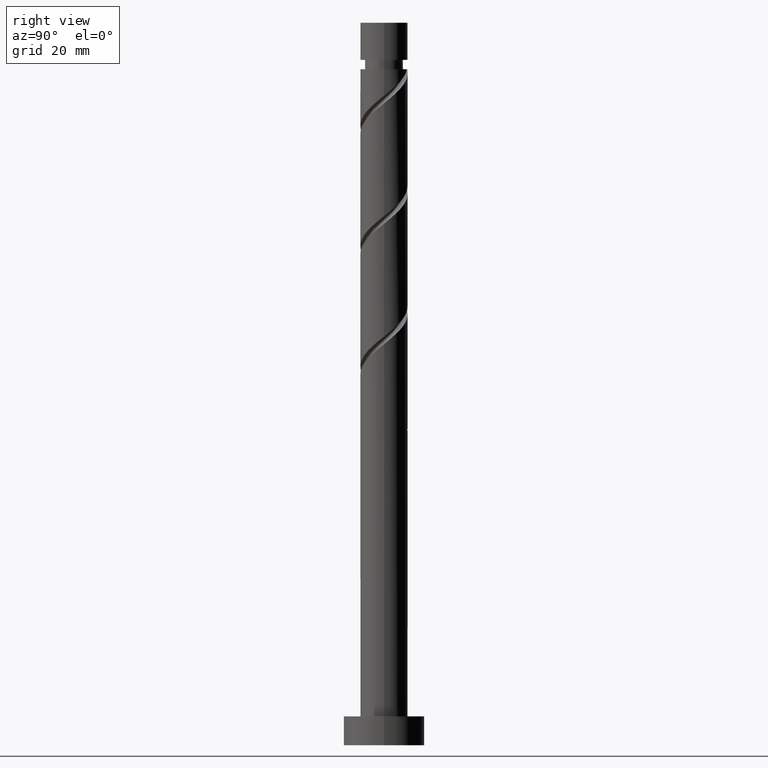
[diagram: clean part render]
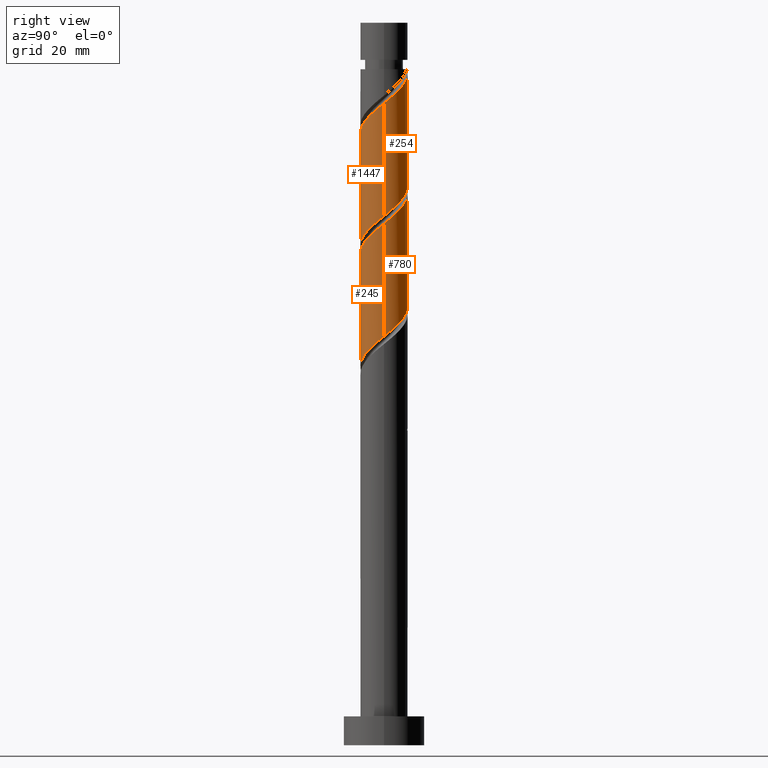
[diagram: same view with one multi-face feature highlighted, each face labeled with its STEP entity id]
A machine part, right view. The highlighted faces form ONE feature: a constant-radius fillet chain: 4 tangent blend faces with common blend radius 4.1 mm. The faces share edges in the B-rep.
Their STEP definitions:
[1] entity #245 (Cylinder):
#9 = CARTESIAN_POINT ( 'NONE',  ( -4.100000000000005862, -0.4120655042562786918, 80.15716561355226588 ) ) ;
#17 = CARTESIAN_POINT ( 'NONE',  ( 0.8158896984274279784, -4.018000000000006011, 85.69599681294801030 ) ) ;
#93 = CARTESIAN_POINT ( 'NONE',  ( -1.452278379651415374, -3.888775766748016061, 64.34183014628135311 ) ) ;
#100 = CARTESIAN_POINT ( 'NONE',  ( -3.730198215631533643, -1.701652512147916019, 61.73766347961468171 ) ) ;
#115 = CARTESIAN_POINT ( 'NONE',  ( -3.021789775274397183, -2.771062351165541671, 62.77933014628134600 ) ) ;
#125 = CYLINDRICAL_SURFACE ( 'NONE', #726, 4.099999999999999645 ) ;
#146 = CARTESIAN_POINT ( 'NONE',  ( 4.073468864823458269, -0.4656730691310472792, 89.86266347961468171 ) ) ;
#189 = EDGE_CURVE ( 'NONE', #708, #323, #1444, .T. ) ;
#238 = CARTESIAN_POINT ( 'NONE',  ( -4.100000000000000533, 4.587889451660987449E-15, 60.31913258775163200 ) ) ;
#245 = ADVANCED_FACE ( 'NONE', ( #1335 ), #125, .T. ) ;
#249 = CARTESIAN_POINT ( 'NONE',  ( 2.582896615680651209, -3.249666833500790109, 87.25849681294805293 ) ) ;
#260 = CARTESIAN_POINT ( 'NONE',  ( 4.100000000000005862, -0.2335923235303744017, 90.05001661560379489 ) ) ;
#284 = VECTOR ( 'NONE', #1106, 1000.000000000000000 ) ;
#286 = CARTESIAN_POINT ( 'NONE',  ( -4.099999999999999645, 0.000000000000000000, 125.0000000000000000 ) ) ;
#323 = VERTEX_POINT ( 'NONE', #1489 ) ;
#328 = CARTESIAN_POINT ( 'NONE',  ( 3.569221300124400198, -2.017587497666032181, 69.02933014628136732 ) ) ;
#341 = CARTESIAN_POINT ( 'NONE',  ( 1.110847155465531255, -3.999713496394922796, 66.42516347961469592 ) ) ;
#364 = CARTESIAN_POINT ( 'NONE',  ( -3.569221300124406859, -2.017587497666033958, 81.52933014628135311 ) ) ;
#371 = CARTESIAN_POINT ( 'NONE',  ( 3.460682934868149818, -2.292457868830305223, 88.30016347961469592 ) ) ;
#434 = EDGE_LOOP ( 'NONE', ( #897, #1042, #1441, #684 ) ) ;
#464 = CARTESIAN_POINT ( 'NONE',  ( -2.292457868830304335, -3.460682934868149818, 83.09183014628136732 ) ) ;
#475 = CARTESIAN_POINT ( 'NONE',  ( -2.017587497666032181, -3.569221300124400198, 63.82099681294801741 ) ) ;
#476 = DIRECTION ( 'NONE',  ( -0.000000000000000000, -0.000000000000000000, -1.000000000000000000 ) ) ;
#487 = CARTESIAN_POINT ( 'NONE',  ( 0.000000000000000000, 0.000000000000000000, 125.0000000000000000 ) ) ;
#495 = CARTESIAN_POINT ( 'NONE',  ( -4.100000000000005862, -3.448413640137319873E-15, 79.82286103814443834 ) ) ;
#517 =( BOUNDED_CURVE ( )  B_SPLINE_CURVE ( 2, ( #1544, #1072, #953, #803, #328, #1561, #589, #1304, #1296, #341, #705, #933, #1439, #93, #475, #1433, #115, #833, #100, #595, #811, #576, #828 ),
 .UNSPECIFIED., .F., .T. ) 
 B_SPLINE_CURVE_WITH_KNOTS ( ( 3, 2, 2, 2, 2, 2, 2, 2, 2, 2, 2, 3 ),
 ( 0.8045322023138552492, 0.8125000000000000000, 0.8249999999999999556, 0.8375000000000000222, 0.8499999999999999778, 0.8625000000000000444, 0.8750000000000000000, 0.8874999999999999556, 0.9000000000000000222, 0.9124999999999999778, 0.9250000000000000444, 0.9295322023138552492 ),
 .UNSPECIFIED. ) 
 CURVE ( )  GEOMETRIC_REPRESENTATION_ITEM ( )  RATIONAL_B_SPLINE_CURVE ( ( 0.9039174447099327381, 0.9019565955404622581, 0.9090909090909106149, 0.8978984914501266790, 0.9090909090909106149, 0.8978984914501266790, 0.9090909090909106149, 0.8978984914501266790, 0.9090909090909106149, 0.8978984914501266790, 0.9090909090909106149, 0.8978984914501266790, 0.9090909090909106149, 0.8978984914501266790, 0.9090909090909106149, 0.8978984914501266790, 0.9090909090909106149, 0.8978984914501266790, 0.9090909090909106149, 0.8978984914501266790, 0.9090909090909106149, 0.9050328050005749247, 0.9039174447099327381 ) ) 
 REPRESENTATION_ITEM ( '' )  );
#532 = VECTOR ( 'NONE', #645, 1000.000000000000000 ) ;
#576 = CARTESIAN_POINT ( 'NONE',  ( -4.100000000000000533, -0.2335923235303724033, 60.50864367695891133 ) ) ;
#589 = CARTESIAN_POINT ( 'NONE',  ( 2.771062351165541671, -3.021789775274397183, 67.98766347961468171 ) ) ;
#592 = EDGE_CURVE ( 'NONE', #806, #1338, #517, .T. ) ;
#595 = CARTESIAN_POINT ( 'NONE',  ( -3.999713496394922796, -1.110847155465531921, 61.21683014628136021 ) ) ;
#620 = CARTESIAN_POINT ( 'NONE',  ( 4.099999999999999645, 5.021051876504147385E-16, 125.0000000000000000 ) ) ;
#645 = DIRECTION ( 'NONE',  ( -0.000000000000000000, -0.000000000000000000, -1.000000000000000000 ) ) ;
#684 = ORIENTED_EDGE ( 'NONE', *, *, #592, .F. ) ;
#705 = CARTESIAN_POINT ( 'NONE',  ( 0.4656730691310446701, -4.073468864823452940, 65.90433014628135311 ) ) ;
#708 = VERTEX_POINT ( 'NONE', #1567 ) ;
#726 = AXIS2_PLACEMENT_3D ( 'NONE', #487, #476, #1460 ) ;
#803 = CARTESIAN_POINT ( 'NONE',  ( 3.888775766748016061, -1.452278379651415374, 69.55016347961469592 ) ) ;
#806 = VERTEX_POINT ( 'NONE', #1423 ) ;
#811 = CARTESIAN_POINT ( 'NONE',  ( -4.073468864823452940, -0.4656730691310448367, 60.69599681294801741 ) ) ;
#828 = CARTESIAN_POINT ( 'NONE',  ( -4.100000000000000533, 4.587889451660987449E-15, 60.31913258775163200 ) ) ;
#833 = CARTESIAN_POINT ( 'NONE',  ( -3.460682934868145377, -2.292457868830300338, 62.25849681294803162 ) ) ;
#845 = CARTESIAN_POINT ( 'NONE',  ( -2.771062351165547444, -3.021789775274400291, 82.57099681294801030 ) ) ;
#852 = CARTESIAN_POINT ( 'NONE',  ( 1.452278379651416262, -3.888775766748022278, 86.21683014628138153 ) ) ;
#897 = ORIENTED_EDGE ( 'NONE', *, *, #963, .F. ) ;
#933 = CARTESIAN_POINT ( 'NONE',  ( -0.1795010172034419704, -4.147224233251982639, 65.38349681294802451 ) ) ;
#940 = CARTESIAN_POINT ( 'NONE',  ( -3.249666833500790109, -2.582896615680651653, 82.05016347961469592 ) ) ;
#953 = CARTESIAN_POINT ( 'NONE',  ( 4.017999999999999794, -0.8158896984274288666, 70.07099681294802451 ) ) ;
#963 = EDGE_CURVE ( 'NONE', #323, #806, #1232, .T. ) ;
#972 = CARTESIAN_POINT ( 'NONE',  ( -3.888775766748022278, -1.452278379651416484, 81.00849681294803872 ) ) ;
#986 = CARTESIAN_POINT ( 'NONE',  ( 4.100000000000005862, 2.908661939941913273E-15, 90.23952770481109553 ) ) ;
#1042 = ORIENTED_EDGE ( 'NONE', *, *, #189, .F. ) ;
#1046 = EDGE_CURVE ( 'NONE', #708, #1338, #1385, .T. ) ;
#1072 = CARTESIAN_POINT ( 'NONE',  ( 4.099999999999998757, -0.4120655042562798021, 70.40149467901045455 ) ) ;
#1073 = CARTESIAN_POINT ( 'NONE',  ( -1.110847155465534586, -3.999713496394928569, 84.13349681294803872 ) ) ;
#1106 = DIRECTION ( 'NONE',  ( -0.000000000000000000, -0.000000000000000000, -1.000000000000000000 ) ) ;
#1110 = CARTESIAN_POINT ( 'NONE',  ( 3.730198215631538972, -1.701652512147919794, 88.82099681294801030 ) ) ;
#1204 = CARTESIAN_POINT ( 'NONE',  ( -0.4656730691310471126, -4.073468864823458269, 84.65433014628138153 ) ) ;
#1232 = LINE ( 'NONE', #620, #284 ) ;
#1296 = CARTESIAN_POINT ( 'NONE',  ( 1.701652512147916019, -3.730198215631533643, 66.94599681294803872 ) ) ;
#1304 = CARTESIAN_POINT ( 'NONE',  ( 2.292457868830300338, -3.460682934868145377, 67.46683014628136732 ) ) ;
#1317 = CARTESIAN_POINT ( 'NONE',  ( 0.1795010172034404439, -4.147224233251988856, 85.17516347961471013 ) ) ;
#1333 = CARTESIAN_POINT ( 'NONE',  ( -1.701652512147919794, -3.730198215631538972, 83.61266347961468171 ) ) ;
#1335 = FACE_OUTER_BOUND ( 'NONE', #434, .T. ) ;
#1338 = VERTEX_POINT ( 'NONE', #238 ) ;
#1345 = CARTESIAN_POINT ( 'NONE',  ( 2.017587497666033958, -3.569221300124406859, 86.73766347961466749 ) ) ;
#1385 = LINE ( 'NONE', #286, #532 ) ;
#1423 = CARTESIAN_POINT ( 'NONE',  ( 4.099999999999999645, -5.097654946289985791E-15, 70.73579925441829630 ) ) ;
#1433 = CARTESIAN_POINT ( 'NONE',  ( -2.582896615680648544, -3.249666833500782559, 63.30016347961469592 ) ) ;
#1439 = CARTESIAN_POINT ( 'NONE',  ( -0.8158896984274286446, -4.017999999999999794, 64.86266347961469592 ) ) ;
#1441 = ORIENTED_EDGE ( 'NONE', *, *, #1046, .T. ) ;
#1444 =( BOUNDED_CURVE ( )  B_SPLINE_CURVE ( 2, ( #495, #9, #1457, #972, #364, #940, #845, #464, #1333, #1073, #1204, #1317, #17, #852, #1345, #249, #1456, #371, #1110, #1568, #146, #260, #986 ),
 .UNSPECIFIED., .F., .T. ) 
 B_SPLINE_CURVE_WITH_KNOTS ( ( 3, 2, 2, 2, 2, 2, 2, 2, 2, 2, 2, 3 ),
 ( 0.3045322023138552492, 0.3125000000000000000, 0.3249999999999999556, 0.3375000000000000222, 0.3499999999999999778, 0.3625000000000000444, 0.3750000000000000000, 0.3874999999999999556, 0.4000000000000000222, 0.4124999999999999778, 0.4250000000000000444, 0.4295322023138552492 ),
 .UNSPECIFIED. ) 
 CURVE ( )  GEOMETRIC_REPRESENTATION_ITEM ( )  RATIONAL_B_SPLINE_CURVE ( ( 0.9039174447099389553, 0.9019565955404684754, 0.9090909090909168322, 0.8978984914501328962, 0.9090909090909168322, 0.8978984914501328962, 0.9090909090909168322, 0.8978984914501328962, 0.9090909090909168322, 0.8978984914501328962, 0.9090909090909168322, 0.8978984914501328962, 0.9090909090909168322, 0.8978984914501328962, 0.9090909090909168322, 0.8978984914501328962, 0.9090909090909168322, 0.8978984914501328962, 0.9090909090909168322, 0.8978984914501328962, 0.9090909090909168322, 0.9050328050005811420, 0.9039174447099389553 ) ) 
 REPRESENTATION_ITEM ( '' )  );
#1456 = CARTESIAN_POINT ( 'NONE',  ( 3.021789775274400291, -2.771062351165547444, 87.77933014628138153 ) ) ;
#1457 = CARTESIAN_POINT ( 'NONE',  ( -4.018000000000006011, -0.8158896984274283115, 80.48766347961469592 ) ) ;
#1460 = DIRECTION ( 'NONE',  ( -1.000000000000000000, 0.000000000000000000, 0.000000000000000000 ) ) ;
#1489 = CARTESIAN_POINT ( 'NONE',  ( 4.100000000000005862, 2.908661939941913273E-15, 90.23952770481109553 ) ) ;
#1544 = CARTESIAN_POINT ( 'NONE',  ( 4.099999999999999645, -5.097654946289985791E-15, 70.73579925441829630 ) ) ;
#1561 = CARTESIAN_POINT ( 'NONE',  ( 3.249666833500782559, -2.582896615680648988, 68.50849681294801030 ) ) ;
#1567 = CARTESIAN_POINT ( 'NONE',  ( -4.100000000000005862, -3.448413640137319873E-15, 79.82286103814443834 ) ) ;
#1568 = CARTESIAN_POINT ( 'NONE',  ( 3.999713496394928569, -1.110847155465534586, 89.34183014628133890 ) ) ;
[2] entity #780 (Cylinder):
#11 = CARTESIAN_POINT ( 'NONE',  ( -2.771062351165542115, 3.021789775274397183, 78.40433014628133890 ) ) ;
#26 = CARTESIAN_POINT ( 'NONE',  ( -3.249666833500782559, 2.582896615680648544, 78.92516347961466749 ) ) ;
#27 = AXIS2_PLACEMENT_3D ( 'NONE', #348, #1446, #1063 ) ;
#31 = CARTESIAN_POINT ( 'NONE',  ( -3.999713496394928125, 1.110847155465534142, 99.75849681294802451 ) ) ;
#140 = CARTESIAN_POINT ( 'NONE',  ( -4.099999999999999645, 0.4120655042562792469, 80.81816134567712595 ) ) ;
#145 = CARTESIAN_POINT ( 'NONE',  ( -3.460682934868150262, 2.292457868830304335, 98.71683014628133890 ) ) ;
#148 =( BOUNDED_CURVE ( )  B_SPLINE_CURVE ( 2, ( #825, #574, #553, #433, #1405, #867, #610, #356, #839, #271, #1037, #419, #1251, #1380, #1531, #547, #1455, #145, #630, #31, #1481, #259, #507 ),
 .UNSPECIFIED., .F., .T. ) 
 B_SPLINE_CURVE_WITH_KNOTS ( ( 3, 2, 2, 2, 2, 2, 2, 2, 2, 2, 2, 3 ),
 ( 0.4295322023138552492, 0.4375000000000000000, 0.4499999999999999556, 0.4625000000000000222, 0.4749999999999999778, 0.4875000000000000444, 0.5000000000000000000, 0.5124999999999999556, 0.5250000000000000222, 0.5374999999999999778, 0.5500000000000000444, 0.5545322023138551382 ),
 .UNSPECIFIED. ) 
 CURVE ( )  GEOMETRIC_REPRESENTATION_ITEM ( )  RATIONAL_B_SPLINE_CURVE ( ( 0.9039174447099389553, 0.9019565955404684754, 0.9090909090909168322, 0.8978984914501328962, 0.9090909090909168322, 0.8978984914501328962, 0.9090909090909168322, 0.8978984914501328962, 0.9090909090909168322, 0.8978984914501328962, 0.9090909090909168322, 0.8978984914501328962, 0.9090909090909168322, 0.8978984914501328962, 0.9090909090909168322, 0.8978984914501328962, 0.9090909090909168322, 0.8978984914501328962, 0.9090909090909168322, 0.8978984914501328962, 0.9090909090909168322, 0.9050328050005813640, 0.9039174447099391774 ) ) 
 REPRESENTATION_ITEM ( '' )  );
#191 = CARTESIAN_POINT ( 'NONE',  ( 4.099999999999999645, -5.097654946289985791E-15, 70.73579925441829630 ) ) ;
#259 = CARTESIAN_POINT ( 'NONE',  ( -4.100000000000004974, 0.2335923235303795642, 100.4666832822704805 ) ) ;
#264 = CARTESIAN_POINT ( 'NONE',  ( -4.017999999999999794, 0.8158896984274283115, 80.48766347961466749 ) ) ;
#270 = LINE ( 'NONE', #1201, #1321 ) ;
#271 = CARTESIAN_POINT ( 'NONE',  ( 1.110847155465535252, 3.999713496394928569, 94.55016347961469592 ) ) ;
#284 = VECTOR ( 'NONE', #1106, 1000.000000000000000 ) ;
#290 = CARTESIAN_POINT ( 'NONE',  ( 4.100000000000000533, 0.2335923235303719592, 70.92531034362558273 ) ) ;
#297 =( BOUNDED_CURVE ( )  B_SPLINE_CURVE ( 2, ( #1099, #140, #264, #981, #1470, #26, #11, #497, #374, #855, #1230, #1476, #383, #866, #1358, #1237, #511, #902, #1136, #1493, #1383, #290, #191 ),
 .UNSPECIFIED., .F., .T. ) 
 B_SPLINE_CURVE_WITH_KNOTS ( ( 3, 2, 2, 2, 2, 2, 2, 2, 2, 2, 2, 3 ),
 ( 0.6795322023138552492, 0.6875000000000000000, 0.6999999999999999556, 0.7125000000000000222, 0.7249999999999999778, 0.7375000000000000444, 0.7500000000000000000, 0.7624999999999999556, 0.7750000000000000222, 0.7874999999999999778, 0.8000000000000000444, 0.8045322023138552492 ),
 .UNSPECIFIED. ) 
 CURVE ( )  GEOMETRIC_REPRESENTATION_ITEM ( )  RATIONAL_B_SPLINE_CURVE ( ( 0.9039174447099327381, 0.9019565955404622581, 0.9090909090909106149, 0.8978984914501266790, 0.9090909090909106149, 0.8978984914501266790, 0.9090909090909106149, 0.8978984914501266790, 0.9090909090909106149, 0.8978984914501266790, 0.9090909090909106149, 0.8978984914501266790, 0.9090909090909106149, 0.8978984914501266790, 0.9090909090909106149, 0.8978984914501266790, 0.9090909090909106149, 0.8978984914501266790, 0.9090909090909106149, 0.8978984914501266790, 0.9090909090909106149, 0.9050328050005749247, 0.9039174447099327381 ) ) 
 REPRESENTATION_ITEM ( '' )  );
#315 = EDGE_CURVE ( 'NONE', #323, #1079, #148, .T. ) ;
#323 = VERTEX_POINT ( 'NONE', #1489 ) ;
#348 = CARTESIAN_POINT ( 'NONE',  ( 0.000000000000000000, 0.000000000000000000, 125.0000000000000000 ) ) ;
#356 = CARTESIAN_POINT ( 'NONE',  ( 2.292457868830306111, 3.460682934868148930, 93.50849681294801030 ) ) ;
#374 = CARTESIAN_POINT ( 'NONE',  ( -1.701652512147916463, 3.730198215631533643, 77.36266347961471013 ) ) ;
#383 = CARTESIAN_POINT ( 'NONE',  ( 0.8158896984274290887, 4.017999999999999794, 75.27933014628135311 ) ) ;
#419 = CARTESIAN_POINT ( 'NONE',  ( -0.1795010172034399165, 4.147224233251988856, 95.59183014628136732 ) ) ;
#433 = CARTESIAN_POINT ( 'NONE',  ( 3.888775766748022722, 1.452278379651416262, 91.42516347961468171 ) ) ;
#479 = ORIENTED_EDGE ( 'NONE', *, *, #963, .T. ) ;
#497 = CARTESIAN_POINT ( 'NONE',  ( -2.292457868830300338, 3.460682934868145377, 77.88349681294802451 ) ) ;
#507 = CARTESIAN_POINT ( 'NONE',  ( -4.100000000000005862, -1.349379250488516300E-15, 100.6561943714777669 ) ) ;
#511 = CARTESIAN_POINT ( 'NONE',  ( 3.021789775274398071, 2.771062351165541671, 73.19599681294802451 ) ) ;
#547 = CARTESIAN_POINT ( 'NONE',  ( -2.582896615680651653, 3.249666833500790109, 97.67516347961469592 ) ) ;
#553 = CARTESIAN_POINT ( 'NONE',  ( 4.018000000000006011, 0.8158896984274278674, 90.90433014628133890 ) ) ;
#568 = FACE_OUTER_BOUND ( 'NONE', #1570, .T. ) ;
#574 = CARTESIAN_POINT ( 'NONE',  ( 4.100000000000004974, 0.4120655042562780257, 90.57383228021892307 ) ) ;
#610 = CARTESIAN_POINT ( 'NONE',  ( 2.771062351165547888, 3.021789775274399847, 92.98766347961468171 ) ) ;
#620 = CARTESIAN_POINT ( 'NONE',  ( 4.099999999999999645, 5.021051876504147385E-16, 125.0000000000000000 ) ) ;
#630 = CARTESIAN_POINT ( 'NONE',  ( -3.730198215631538972, 1.701652512147919349, 99.23766347961468171 ) ) ;
#780 = ADVANCED_FACE ( 'NONE', ( #568 ), #1056, .T. ) ;
#806 = VERTEX_POINT ( 'NONE', #1423 ) ;
#825 = CARTESIAN_POINT ( 'NONE',  ( 4.100000000000005862, 2.908661939941913273E-15, 90.23952770481109553 ) ) ;
#839 = CARTESIAN_POINT ( 'NONE',  ( 1.701652512147920460, 3.730198215631538972, 94.02933014628136732 ) ) ;
#855 = CARTESIAN_POINT ( 'NONE',  ( -1.110847155465531921, 3.999713496394922796, 76.84183014628135311 ) ) ;
#866 = CARTESIAN_POINT ( 'NONE',  ( 1.452278379651416040, 3.888775766748016061, 74.75849681294801030 ) ) ;
#867 = CARTESIAN_POINT ( 'NONE',  ( 3.249666833500790553, 2.582896615680651209, 92.46683014628136732 ) ) ;
#902 = CARTESIAN_POINT ( 'NONE',  ( 3.460682934868145377, 2.292457868830299006, 72.67516347961466749 ) ) ;
#963 = EDGE_CURVE ( 'NONE', #323, #806, #1232, .T. ) ;
#981 = CARTESIAN_POINT ( 'NONE',  ( -3.888775766748016505, 1.452278379651414930, 79.96683014628138153 ) ) ;
#1037 = CARTESIAN_POINT ( 'NONE',  ( 0.4656730691310476677, 4.073468864823459157, 95.07099681294802451 ) ) ;
#1056 = CYLINDRICAL_SURFACE ( 'NONE', #27, 4.099999999999999645 ) ;
#1063 = DIRECTION ( 'NONE',  ( -1.000000000000000000, 0.000000000000000000, 0.000000000000000000 ) ) ;
#1079 = VERTEX_POINT ( 'NONE', #1255 ) ;
#1099 = CARTESIAN_POINT ( 'NONE',  ( -4.100000000000000533, 4.587889451660987449E-15, 81.15246592108495349 ) ) ;
#1106 = DIRECTION ( 'NONE',  ( -0.000000000000000000, -0.000000000000000000, -1.000000000000000000 ) ) ;
#1120 = ORIENTED_EDGE ( 'NONE', *, *, #1491, .F. ) ;
#1131 = CARTESIAN_POINT ( 'NONE',  ( -4.100000000000000533, 4.587889451660987449E-15, 81.15246592108495349 ) ) ;
#1136 = CARTESIAN_POINT ( 'NONE',  ( 3.730198215631533643, 1.701652512147915353, 72.15433014628136732 ) ) ;
#1163 = ORIENTED_EDGE ( 'NONE', *, *, #1575, .F. ) ;
#1201 = CARTESIAN_POINT ( 'NONE',  ( -4.099999999999999645, 0.000000000000000000, 125.0000000000000000 ) ) ;
#1216 = VERTEX_POINT ( 'NONE', #1131 ) ;
#1230 = CARTESIAN_POINT ( 'NONE',  ( -0.4656730691310451142, 4.073468864823452051, 76.32099681294799609 ) ) ;
#1232 = LINE ( 'NONE', #620, #284 ) ;
#1237 = CARTESIAN_POINT ( 'NONE',  ( 2.582896615680648988, 3.249666833500782559, 73.71683014628135311 ) ) ;
#1251 = CARTESIAN_POINT ( 'NONE',  ( -0.8158896984274277564, 4.018000000000006011, 96.11266347961468171 ) ) ;
#1255 = CARTESIAN_POINT ( 'NONE',  ( -4.100000000000005862, -1.349379250488516300E-15, 100.6561943714777669 ) ) ;
#1321 = VECTOR ( 'NONE', #1484, 1000.000000000000000 ) ;
#1358 = CARTESIAN_POINT ( 'NONE',  ( 2.017587497666032625, 3.569221300124400198, 74.23766347961469592 ) ) ;
#1380 = CARTESIAN_POINT ( 'NONE',  ( -1.452278379651416484, 3.888775766748022278, 96.63349681294803872 ) ) ;
#1383 = CARTESIAN_POINT ( 'NONE',  ( 4.073468864823452940, 0.4656730691310445036, 71.11266347961469592 ) ) ;
#1405 = CARTESIAN_POINT ( 'NONE',  ( 3.569221300124406859, 2.017587497666033514, 91.94599681294801030 ) ) ;
#1418 = ORIENTED_EDGE ( 'NONE', *, *, #315, .F. ) ;
#1423 = CARTESIAN_POINT ( 'NONE',  ( 4.099999999999999645, -5.097654946289985791E-15, 70.73579925441829630 ) ) ;
#1446 = DIRECTION ( 'NONE',  ( -0.000000000000000000, -0.000000000000000000, -1.000000000000000000 ) ) ;
#1455 = CARTESIAN_POINT ( 'NONE',  ( -3.021789775274400291, 2.771062351165547444, 98.19599681294802451 ) ) ;
#1470 = CARTESIAN_POINT ( 'NONE',  ( -3.569221300124400198, 2.017587497666031737, 79.44599681294803872 ) ) ;
#1476 = CARTESIAN_POINT ( 'NONE',  ( 0.1795010172034414431, 4.147224233251982639, 75.80016347961468171 ) ) ;
#1481 = CARTESIAN_POINT ( 'NONE',  ( -4.073468864823458269, 0.4656730691310468351, 100.2793301462813673 ) ) ;
#1484 = DIRECTION ( 'NONE',  ( -0.000000000000000000, -0.000000000000000000, -1.000000000000000000 ) ) ;
#1489 = CARTESIAN_POINT ( 'NONE',  ( 4.100000000000005862, 2.908661939941913273E-15, 90.23952770481109553 ) ) ;
#1491 = EDGE_CURVE ( 'NONE', #1079, #1216, #270, .T. ) ;
#1493 = CARTESIAN_POINT ( 'NONE',  ( 3.999713496394922796, 1.110847155465531255, 71.63349681294803872 ) ) ;
#1531 = CARTESIAN_POINT ( 'NONE',  ( -2.017587497666033958, 3.569221300124405527, 97.15433014628133890 ) ) ;
#1570 = EDGE_LOOP ( 'NONE', ( #1418, #479, #1163, #1120 ) ) ;
#1575 = EDGE_CURVE ( 'NONE', #1216, #806, #297, .T. ) ;
[3] entity #1447 (Cylinder):
#4 = CYLINDRICAL_SURFACE ( 'NONE', #783, 4.099999999999999645 ) ;
#8 = CARTESIAN_POINT ( 'NONE',  ( -4.100000000000005862, -1.349379250488516300E-15, 100.6561943714777669 ) ) ;
#32 = ORIENTED_EDGE ( 'NONE', *, *, #529, .F. ) ;
#79 = CARTESIAN_POINT ( 'NONE',  ( 3.730198215631538972, -1.701652512147919794, 109.6543301462813531 ) ) ;
#91 = CARTESIAN_POINT ( 'NONE',  ( -1.452278379651415374, -3.888775766748016061, 85.17516347961469592 ) ) ;
#135 =( BOUNDED_CURVE ( )  B_SPLINE_CURVE ( 2, ( #457, #800, #696, #930, #1420, #1550, #936, #1293, #565, #466, #587, #325, #703, #91, #1443, #1068, #1559, #1302, #943, #1191, #1308, #216, #816 ),
 .UNSPECIFIED., .F., .T. ) 
 B_SPLINE_CURVE_WITH_KNOTS ( ( 3, 2, 2, 2, 2, 2, 2, 2, 2, 2, 2, 3 ),
 ( 0.5545322023138552492, 0.5625000000000000000, 0.5749999999999999556, 0.5875000000000000222, 0.5999999999999999778, 0.6125000000000000444, 0.6250000000000000000, 0.6374999999999999556, 0.6500000000000000222, 0.6624999999999999778, 0.6750000000000000444, 0.6795322023138552492 ),
 .UNSPECIFIED. ) 
 CURVE ( )  GEOMETRIC_REPRESENTATION_ITEM ( )  RATIONAL_B_SPLINE_CURVE ( ( 0.9039174447099327381, 0.9019565955404622581, 0.9090909090909106149, 0.8978984914501266790, 0.9090909090909106149, 0.8978984914501266790, 0.9090909090909106149, 0.8978984914501266790, 0.9090909090909106149, 0.8978984914501266790, 0.9090909090909106149, 0.8978984914501266790, 0.9090909090909106149, 0.8978984914501266790, 0.9090909090909106149, 0.8978984914501266790, 0.9090909090909106149, 0.8978984914501266790, 0.9090909090909106149, 0.8978984914501266790, 0.9090909090909106149, 0.9050328050005749247, 0.9039174447099327381 ) ) 
 REPRESENTATION_ITEM ( '' )  );
#151 = DIRECTION ( 'NONE',  ( -0.000000000000000000, -0.000000000000000000, -1.000000000000000000 ) ) ;
#163 = CARTESIAN_POINT ( 'NONE',  ( 2.017587497666033958, -3.569221300124406859, 107.5709968129480245 ) ) ;
#216 = CARTESIAN_POINT ( 'NONE',  ( -4.100000000000000533, -0.2335923235303724033, 81.34197701029225414 ) ) ;
#257 = CARTESIAN_POINT ( 'NONE',  ( -2.292457868830304335, -3.460682934868149818, 103.9251634796146817 ) ) ;
#270 = LINE ( 'NONE', #1201, #1321 ) ;
#291 = CARTESIAN_POINT ( 'NONE',  ( 4.100000000000004974, 7.796413447266981907E-16, 111.0728610381444241 ) ) ;
#325 = CARTESIAN_POINT ( 'NONE',  ( -0.1795010172034419704, -4.147224233251982639, 86.21683014628136732 ) ) ;
#380 = CARTESIAN_POINT ( 'NONE',  ( -4.018000000000006011, -0.8158896984274283115, 101.3209968129480103 ) ) ;
#387 = CARTESIAN_POINT ( 'NONE',  ( 3.460682934868149818, -2.292457868830305223, 109.1334968129480245 ) ) ;
#415 = EDGE_CURVE ( 'NONE', #1079, #1313, #776, .T. ) ;
#457 = CARTESIAN_POINT ( 'NONE',  ( 4.099999999999999645, -5.097654946289985791E-15, 91.56913258775163911 ) ) ;
#466 = CARTESIAN_POINT ( 'NONE',  ( 1.110847155465531255, -3.999713496394922796, 87.25849681294803872 ) ) ;
#502 = CARTESIAN_POINT ( 'NONE',  ( 0.000000000000000000, 0.000000000000000000, 125.0000000000000000 ) ) ;
#505 = CARTESIAN_POINT ( 'NONE',  ( 2.582896615680651209, -3.249666833500790109, 108.0918301462813815 ) ) ;
#529 = EDGE_CURVE ( 'NONE', #1313, #536, #1264, .T. ) ;
#536 = VERTEX_POINT ( 'NONE', #561 ) ;
#561 = CARTESIAN_POINT ( 'NONE',  ( 4.099999999999999645, -5.097654946289985791E-15, 91.56913258775163911 ) ) ;
#565 = CARTESIAN_POINT ( 'NONE',  ( 1.701652512147916019, -3.730198215631533643, 87.77933014628136732 ) ) ;
#587 = CARTESIAN_POINT ( 'NONE',  ( 0.4656730691310446701, -4.073468864823452940, 86.73766347961468171 ) ) ;
#614 = EDGE_LOOP ( 'NONE', ( #32, #777, #1466, #1551 ) ) ;
#615 = CARTESIAN_POINT ( 'NONE',  ( -1.110847155465534586, -3.999713496394928569, 104.9668301462813957 ) ) ;
#696 = CARTESIAN_POINT ( 'NONE',  ( 4.017999999999999794, -0.8158896984274288666, 90.90433014628133890 ) ) ;
#703 = CARTESIAN_POINT ( 'NONE',  ( -0.8158896984274286446, -4.017999999999999794, 85.69599681294803872 ) ) ;
#762 = CARTESIAN_POINT ( 'NONE',  ( 4.073468864823458269, -0.4656730691310472792, 110.6959968129480103 ) ) ;
#776 =( BOUNDED_CURVE ( )  B_SPLINE_CURVE ( 2, ( #8, #1227, #380, #1482, #1211, #1126, #1094, #257, #1248, #615, #1354, #1361, #1108, #968, #163, #505, #1479, #387, #79, #1016, #762, #1243, #291 ),
 .UNSPECIFIED., .F., .T. ) 
 B_SPLINE_CURVE_WITH_KNOTS ( ( 3, 2, 2, 2, 2, 2, 2, 2, 2, 2, 2, 3 ),
 ( 0.5545322023138551382, 0.5625000000000000000, 0.5749999999999999556, 0.5875000000000000222, 0.5999999999999999778, 0.6125000000000000444, 0.6250000000000000000, 0.6374999999999999556, 0.6500000000000000222, 0.6624999999999999778, 0.6750000000000000444, 0.6795322023138553602 ),
 .UNSPECIFIED. ) 
 CURVE ( )  GEOMETRIC_REPRESENTATION_ITEM ( )  RATIONAL_B_SPLINE_CURVE ( ( 0.9039174447099391774, 0.9019565955404682533, 0.9090909090909168322, 0.8978984914501328962, 0.9090909090909168322, 0.8978984914501328962, 0.9090909090909168322, 0.8978984914501328962, 0.9090909090909168322, 0.8978984914501328962, 0.9090909090909168322, 0.8978984914501328962, 0.9090909090909168322, 0.8978984914501328962, 0.9090909090909168322, 0.8978984914501328962, 0.9090909090909168322, 0.8978984914501328962, 0.9090909090909168322, 0.8978984914501328962, 0.9090909090909168322, 0.9050328050005810310, 0.9039174447099389553 ) ) 
 REPRESENTATION_ITEM ( '' )  );
#777 = ORIENTED_EDGE ( 'NONE', *, *, #415, .F. ) ;
#783 = AXIS2_PLACEMENT_3D ( 'NONE', #502, #151, #965 ) ;
#800 = CARTESIAN_POINT ( 'NONE',  ( 4.099999999999998757, -0.4120655042562798021, 91.23482801234378314 ) ) ;
#816 = CARTESIAN_POINT ( 'NONE',  ( -4.100000000000000533, 4.587889451660987449E-15, 81.15246592108495349 ) ) ;
#930 = CARTESIAN_POINT ( 'NONE',  ( 3.888775766748016061, -1.452278379651415374, 90.38349681294803872 ) ) ;
#936 = CARTESIAN_POINT ( 'NONE',  ( 2.771062351165541671, -3.021789775274397183, 88.82099681294801030 ) ) ;
#943 = CARTESIAN_POINT ( 'NONE',  ( -3.730198215631533643, -1.701652512147916019, 82.57099681294801030 ) ) ;
#965 = DIRECTION ( 'NONE',  ( -1.000000000000000000, 0.000000000000000000, 0.000000000000000000 ) ) ;
#968 = CARTESIAN_POINT ( 'NONE',  ( 1.452278379651416262, -3.888775766748022278, 107.0501634796146959 ) ) ;
#1016 = CARTESIAN_POINT ( 'NONE',  ( 3.999713496394928569, -1.110847155465534586, 110.1751634796146959 ) ) ;
#1036 = CARTESIAN_POINT ( 'NONE',  ( 4.099999999999999645, 5.021051876504147385E-16, 125.0000000000000000 ) ) ;
#1068 = CARTESIAN_POINT ( 'NONE',  ( -2.582896615680648544, -3.249666833500782559, 84.13349681294801030 ) ) ;
#1079 = VERTEX_POINT ( 'NONE', #1255 ) ;
#1088 = FACE_OUTER_BOUND ( 'NONE', #614, .T. ) ;
#1094 = CARTESIAN_POINT ( 'NONE',  ( -2.771062351165547444, -3.021789775274400291, 103.4043301462813815 ) ) ;
#1108 = CARTESIAN_POINT ( 'NONE',  ( 0.8158896984274279784, -4.018000000000006011, 106.5293301462813389 ) ) ;
#1126 = CARTESIAN_POINT ( 'NONE',  ( -3.249666833500790109, -2.582896615680651653, 102.8834968129480245 ) ) ;
#1131 = CARTESIAN_POINT ( 'NONE',  ( -4.100000000000000533, 4.587889451660987449E-15, 81.15246592108495349 ) ) ;
#1166 = DIRECTION ( 'NONE',  ( -0.000000000000000000, -0.000000000000000000, -1.000000000000000000 ) ) ;
#1183 = CARTESIAN_POINT ( 'NONE',  ( 4.100000000000004974, 7.796413447266982893E-16, 111.0728610381444241 ) ) ;
#1191 = CARTESIAN_POINT ( 'NONE',  ( -3.999713496394922796, -1.110847155465531921, 82.05016347961471013 ) ) ;
#1201 = CARTESIAN_POINT ( 'NONE',  ( -4.099999999999999645, 0.000000000000000000, 125.0000000000000000 ) ) ;
#1211 = CARTESIAN_POINT ( 'NONE',  ( -3.569221300124406859, -2.017587497666033958, 102.3626634796146533 ) ) ;
#1216 = VERTEX_POINT ( 'NONE', #1131 ) ;
#1227 = CARTESIAN_POINT ( 'NONE',  ( -4.100000000000007638, -0.4120655042562730852, 100.9904989468856229 ) ) ;
#1243 = CARTESIAN_POINT ( 'NONE',  ( 4.100000000000006750, -0.2335923235303687118, 110.8833499489371661 ) ) ;
#1248 = CARTESIAN_POINT ( 'NONE',  ( -1.701652512147919794, -3.730198215631538972, 104.4459968129479961 ) ) ;
#1255 = CARTESIAN_POINT ( 'NONE',  ( -4.100000000000005862, -1.349379250488516300E-15, 100.6561943714777669 ) ) ;
#1262 = EDGE_CURVE ( 'NONE', #536, #1216, #135, .T. ) ;
#1264 = LINE ( 'NONE', #1036, #1530 ) ;
#1293 = CARTESIAN_POINT ( 'NONE',  ( 2.292457868830300338, -3.460682934868145377, 88.30016347961471013 ) ) ;
#1302 = CARTESIAN_POINT ( 'NONE',  ( -3.460682934868145377, -2.292457868830300338, 83.09183014628133890 ) ) ;
#1308 = CARTESIAN_POINT ( 'NONE',  ( -4.073468864823452940, -0.4656730691310448367, 81.52933014628131048 ) ) ;
#1313 = VERTEX_POINT ( 'NONE', #1183 ) ;
#1321 = VECTOR ( 'NONE', #1484, 1000.000000000000000 ) ;
#1354 = CARTESIAN_POINT ( 'NONE',  ( -0.4656730691310471126, -4.073468864823458269, 105.4876634796146675 ) ) ;
#1361 = CARTESIAN_POINT ( 'NONE',  ( 0.1795010172034404439, -4.147224233251988856, 106.0084968129480245 ) ) ;
#1420 = CARTESIAN_POINT ( 'NONE',  ( 3.569221300124400198, -2.017587497666032181, 89.86266347961469592 ) ) ;
#1443 = CARTESIAN_POINT ( 'NONE',  ( -2.017587497666032181, -3.569221300124400198, 84.65433014628138153 ) ) ;
#1447 = ADVANCED_FACE ( 'NONE', ( #1088 ), #4, .T. ) ;
#1466 = ORIENTED_EDGE ( 'NONE', *, *, #1491, .T. ) ;
#1479 = CARTESIAN_POINT ( 'NONE',  ( 3.021789775274400291, -2.771062351165547444, 108.6126634796146959 ) ) ;
#1482 = CARTESIAN_POINT ( 'NONE',  ( -3.888775766748022278, -1.452278379651416484, 101.8418301462813531 ) ) ;
#1484 = DIRECTION ( 'NONE',  ( -0.000000000000000000, -0.000000000000000000, -1.000000000000000000 ) ) ;
#1491 = EDGE_CURVE ( 'NONE', #1079, #1216, #270, .T. ) ;
#1530 = VECTOR ( 'NONE', #1166, 1000.000000000000000 ) ;
#1550 = CARTESIAN_POINT ( 'NONE',  ( 3.249666833500782559, -2.582896615680648988, 89.34183014628135311 ) ) ;
#1551 = ORIENTED_EDGE ( 'NONE', *, *, #1262, .F. ) ;
#1559 = CARTESIAN_POINT ( 'NONE',  ( -3.021789775274397183, -2.771062351165541671, 83.61266347961466749 ) ) ;
[4] entity #254 (Cylinder):
#13 = CARTESIAN_POINT ( 'NONE',  ( -3.888775766748016505, 1.452278379651414930, 100.8001634796146817 ) ) ;
#19 = DIRECTION ( 'NONE',  ( -0.000000000000000000, -0.000000000000000000, -1.000000000000000000 ) ) ;
#66 = CARTESIAN_POINT ( 'NONE',  ( 4.100000000000004974, 7.796413447266981907E-16, 111.0728610381444241 ) ) ;
#81 = VERTEX_POINT ( 'NONE', #477 ) ;
#109 = CARTESIAN_POINT ( 'NONE',  ( 3.569221300124406859, 2.017587497666033514, 112.7793301462813673 ) ) ;
#123 = CARTESIAN_POINT ( 'NONE',  ( 1.452278379651416040, 3.888775766748016061, 95.59183014628133890 ) ) ;
#131 = CARTESIAN_POINT ( 'NONE',  ( -2.771062351165542115, 3.021789775274397183, 99.23766347961468171 ) ) ;
#149 = CARTESIAN_POINT ( 'NONE',  ( -4.099999999999997868, 0.000000000000000000, 116.9459968129480245 ) ) ;
#168 = LINE ( 'NONE', #432, #937 ) ;
#254 = ADVANCED_FACE ( 'NONE', ( #268 ), #1097, .T. ) ;
#261 = VERTEX_POINT ( 'NONE', #149 ) ;
#268 = FACE_OUTER_BOUND ( 'NONE', #1140, .T. ) ;
#279 = CARTESIAN_POINT ( 'NONE',  ( 4.100000000000000533, 0.2335923235303719592, 91.75864367695892554 ) ) ;
#363 = CARTESIAN_POINT ( 'NONE',  ( 1.701652512147920460, 3.730198215631538972, 114.8626634796146675 ) ) ;
#367 = CARTESIAN_POINT ( 'NONE',  ( 0.000000000000000000, 0.000000000000000000, 116.9459968129480245 ) ) ;
#376 = CARTESIAN_POINT ( 'NONE',  ( -1.110847155465531921, 3.999713496394922796, 97.67516347961469592 ) ) ;
#411 = EDGE_CURVE ( 'NONE', #1313, #81, #569, .T. ) ;
#432 = CARTESIAN_POINT ( 'NONE',  ( -4.099999999999999645, 0.000000000000000000, 125.0000000000000000 ) ) ;
#477 = CARTESIAN_POINT ( 'NONE',  ( -0.8158896984273796837, 4.017999999999529059, 116.9459968129479819 ) ) ;
#499 = CARTESIAN_POINT ( 'NONE',  ( 2.017587497666032625, 3.569221300124400198, 95.07099681294805293 ) ) ;
#529 = EDGE_CURVE ( 'NONE', #1313, #536, #1264, .T. ) ;
#536 = VERTEX_POINT ( 'NONE', #561 ) ;
#550 = CARTESIAN_POINT ( 'NONE',  ( 4.100000000000004086, 0.4120655042562837989, 111.4071656135522943 ) ) ;
#561 = CARTESIAN_POINT ( 'NONE',  ( 4.099999999999999645, -5.097654946289985791E-15, 91.56913258775163911 ) ) ;
#569 =( BOUNDED_CURVE ( )  B_SPLINE_CURVE ( 2, ( #66, #550, #1032, #1523, #109, #1078, #1448, #1205, #363, #948, #728, #1434, #1214 ),
 .UNSPECIFIED., .F., .T. ) 
 B_SPLINE_CURVE_WITH_KNOTS ( ( 3, 2, 2, 2, 2, 2, 3 ),
 ( 0.6795322023138553602, 0.6875000000000000000, 0.7000000000000000666, 0.7125000000000001332, 0.7250000000000001998, 0.7375000000000002665, 0.7500000000000003331 ),
 .UNSPECIFIED. ) 
 CURVE ( )  GEOMETRIC_REPRESENTATION_ITEM ( )  RATIONAL_B_SPLINE_CURVE ( ( 0.9039174447099389553, 0.9019565955404684754, 0.9090909090909168322, 0.8978984914501328962, 0.9090909090909168322, 0.8978984914501328962, 0.9090909090909168322, 0.8978984914501328962, 0.9090909090909168322, 0.8978984914501328962, 0.9090909090909168322, 0.8978984914501325632, 0.9090909090909171653 ) ) 
 REPRESENTATION_ITEM ( '' )  );
#584 = CIRCLE ( 'NONE', #1297, 4.099999999999997868 ) ;
#591 = CARTESIAN_POINT ( 'NONE',  ( -4.100000000000000533, 2.488855062012169283E-15, 101.9857992544182963 ) ) ;
#602 = CARTESIAN_POINT ( 'NONE',  ( 3.999713496394922796, 1.110847155465531255, 92.46683014628136732 ) ) ;
#612 = CARTESIAN_POINT ( 'NONE',  ( -3.249666833500782559, 2.582896615680648544, 99.75849681294801030 ) ) ;
#625 = DIRECTION ( 'NONE',  ( -1.000000000000000000, 0.000000000000000000, 0.000000000000000000 ) ) ;
#728 = CARTESIAN_POINT ( 'NONE',  ( 0.4656730691310476677, 4.073468864823459157, 115.9043301462813531 ) ) ;
#730 = ORIENTED_EDGE ( 'NONE', *, *, #1381, .T. ) ;
#734 = CARTESIAN_POINT ( 'NONE',  ( 3.021789775274398071, 2.771062351165541671, 94.02933014628133890 ) ) ;
#742 = CARTESIAN_POINT ( 'NONE',  ( 3.730198215631533643, 1.701652512147915353, 92.98766347961469592 ) ) ;
#749 = ORIENTED_EDGE ( 'NONE', *, *, #529, .T. ) ;
#790 =( BOUNDED_CURVE ( )  B_SPLINE_CURVE ( 2, ( #1331, #1245, #1453, #13, #841, #612, #131, #1209, #1123, #376, #1101, #1115, #1352, #123, #499, #1342, #734, #858, #742, #602, #850, #279, #977 ),
 .UNSPECIFIED., .F., .T. ) 
 B_SPLINE_CURVE_WITH_KNOTS ( ( 3, 2, 2, 2, 2, 2, 2, 2, 2, 2, 2, 3 ),
 ( 0.4295322023138551382, 0.4375000000000000000, 0.4500000000000000111, 0.4625000000000000222, 0.4749999999999999778, 0.4874999999999999889, 0.5000000000000000000, 0.5124999999999999556, 0.5250000000000000222, 0.5374999999999999778, 0.5500000000000000444, 0.5545322023138552492 ),
 .UNSPECIFIED. ) 
 CURVE ( )  GEOMETRIC_REPRESENTATION_ITEM ( )  RATIONAL_B_SPLINE_CURVE ( ( 0.9039174447099329601, 0.9019565955404622581, 0.9090909090909106149, 0.8978984914501266790, 0.9090909090909106149, 0.8978984914501266790, 0.9090909090909106149, 0.8978984914501266790, 0.9090909090909106149, 0.8978984914501266790, 0.9090909090909106149, 0.8978984914501266790, 0.9090909090909106149, 0.8978984914501266790, 0.9090909090909106149, 0.8978984914501266790, 0.9090909090909106149, 0.8978984914501266790, 0.9090909090909106149, 0.8978984914501266790, 0.9090909090909106149, 0.9050328050005749247, 0.9039174447099327381 ) ) 
 REPRESENTATION_ITEM ( '' )  );
#841 = CARTESIAN_POINT ( 'NONE',  ( -3.569221300124400198, 2.017587497666031737, 100.2793301462813531 ) ) ;
#850 = CARTESIAN_POINT ( 'NONE',  ( 4.073468864823452940, 0.4656730691310445036, 91.94599681294799609 ) ) ;
#858 = CARTESIAN_POINT ( 'NONE',  ( 3.460682934868145377, 2.292457868830299006, 93.50849681294801030 ) ) ;
#907 = AXIS2_PLACEMENT_3D ( 'NONE', #1467, #1347, #979 ) ;
#911 = DIRECTION ( 'NONE',  ( -0.000000000000000000, -0.000000000000000000, -1.000000000000000000 ) ) ;
#937 = VECTOR ( 'NONE', #911, 1000.000000000000000 ) ;
#948 = CARTESIAN_POINT ( 'NONE',  ( 1.110847155465535252, 3.999713496394928569, 115.3834968129480387 ) ) ;
#949 = ORIENTED_EDGE ( 'NONE', *, *, #954, .F. ) ;
#954 = EDGE_CURVE ( 'NONE', #1487, #536, #790, .T. ) ;
#977 = CARTESIAN_POINT ( 'NONE',  ( 4.099999999999999645, -5.097654946289985791E-15, 91.56913258775163911 ) ) ;
#979 = DIRECTION ( 'NONE',  ( -1.000000000000000000, 0.000000000000000000, 0.000000000000000000 ) ) ;
#1032 = CARTESIAN_POINT ( 'NONE',  ( 4.018000000000006011, 0.8158896984274278674, 111.7376634796146959 ) ) ;
#1036 = CARTESIAN_POINT ( 'NONE',  ( 4.099999999999999645, 5.021051876504147385E-16, 125.0000000000000000 ) ) ;
#1078 = CARTESIAN_POINT ( 'NONE',  ( 3.249666833500790553, 2.582896615680651209, 113.3001634796147243 ) ) ;
#1097 = CYLINDRICAL_SURFACE ( 'NONE', #907, 4.099999999999999645 ) ;
#1101 = CARTESIAN_POINT ( 'NONE',  ( -0.4656730691310451142, 4.073468864823452051, 97.15433014628136732 ) ) ;
#1115 = CARTESIAN_POINT ( 'NONE',  ( 0.1795010172034414431, 4.147224233251982639, 96.63349681294801030 ) ) ;
#1123 = CARTESIAN_POINT ( 'NONE',  ( -1.701652512147916463, 3.730198215631533643, 98.19599681294802451 ) ) ;
#1140 = EDGE_LOOP ( 'NONE', ( #1271, #749, #949, #1533, #730 ) ) ;
#1166 = DIRECTION ( 'NONE',  ( -0.000000000000000000, -0.000000000000000000, -1.000000000000000000 ) ) ;
#1183 = CARTESIAN_POINT ( 'NONE',  ( 4.100000000000004974, 7.796413447266982893E-16, 111.0728610381444241 ) ) ;
#1205 = CARTESIAN_POINT ( 'NONE',  ( 2.292457868830306111, 3.460682934868148930, 114.3418301462813247 ) ) ;
#1207 = EDGE_CURVE ( 'NONE', #261, #1487, #168, .T. ) ;
#1209 = CARTESIAN_POINT ( 'NONE',  ( -2.292457868830300338, 3.460682934868145377, 98.71683014628133890 ) ) ;
#1214 = CARTESIAN_POINT ( 'NONE',  ( -0.8158896984273796837, 4.017999999999529059, 116.9459968129479961 ) ) ;
#1245 = CARTESIAN_POINT ( 'NONE',  ( -4.100000000000000533, 0.4120655042562754167, 101.6514946790104688 ) ) ;
#1264 = LINE ( 'NONE', #1036, #1530 ) ;
#1271 = ORIENTED_EDGE ( 'NONE', *, *, #411, .F. ) ;
#1297 = AXIS2_PLACEMENT_3D ( 'NONE', #367, #19, #625 ) ;
#1313 = VERTEX_POINT ( 'NONE', #1183 ) ;
#1331 = CARTESIAN_POINT ( 'NONE',  ( -4.100000000000000533, 2.488855062012169283E-15, 101.9857992544182963 ) ) ;
#1342 = CARTESIAN_POINT ( 'NONE',  ( 2.582896615680648988, 3.249666833500782559, 94.55016347961465328 ) ) ;
#1347 = DIRECTION ( 'NONE',  ( -0.000000000000000000, -0.000000000000000000, -1.000000000000000000 ) ) ;
#1352 = CARTESIAN_POINT ( 'NONE',  ( 0.8158896984274290887, 4.017999999999999794, 96.11266347961465328 ) ) ;
#1381 = EDGE_CURVE ( 'NONE', #261, #81, #584, .T. ) ;
#1434 = CARTESIAN_POINT ( 'NONE',  ( -0.1795010172034572915, 4.147224233251990633, 116.4251634796147101 ) ) ;
#1448 = CARTESIAN_POINT ( 'NONE',  ( 2.771062351165547888, 3.021789775274399847, 113.8209968129480103 ) ) ;
#1453 = CARTESIAN_POINT ( 'NONE',  ( -4.017999999999999794, 0.8158896984274283115, 101.3209968129480103 ) ) ;
#1467 = CARTESIAN_POINT ( 'NONE',  ( 0.000000000000000000, 0.000000000000000000, 125.0000000000000000 ) ) ;
#1487 = VERTEX_POINT ( 'NONE', #591 ) ;
#1523 = CARTESIAN_POINT ( 'NONE',  ( 3.888775766748022722, 1.452278379651416262, 112.2584968129480387 ) ) ;
#1530 = VECTOR ( 'NONE', #1166, 1000.000000000000000 ) ;
#1533 = ORIENTED_EDGE ( 'NONE', *, *, #1207, .F. ) ;